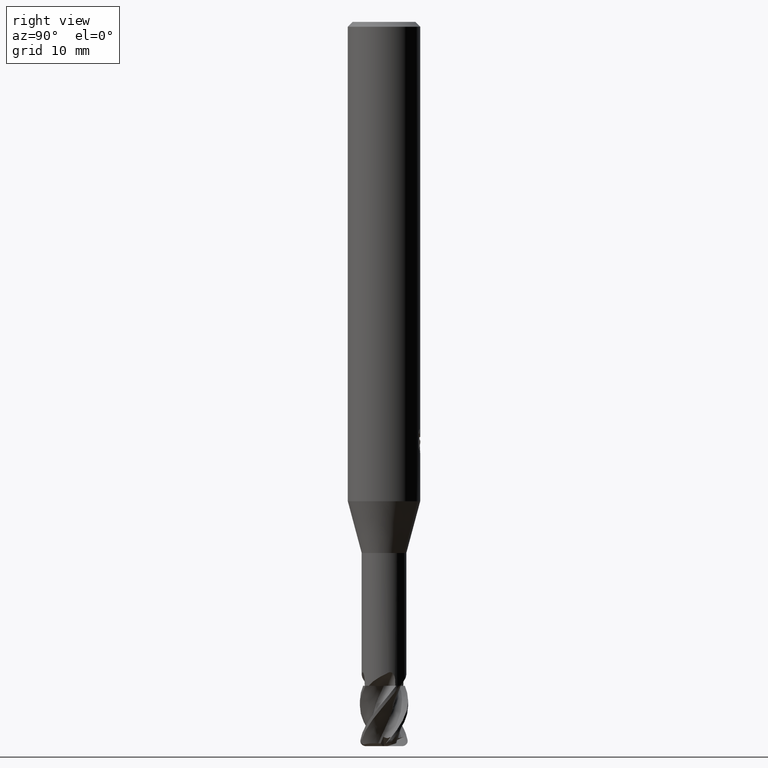
[diagram: clean part render]
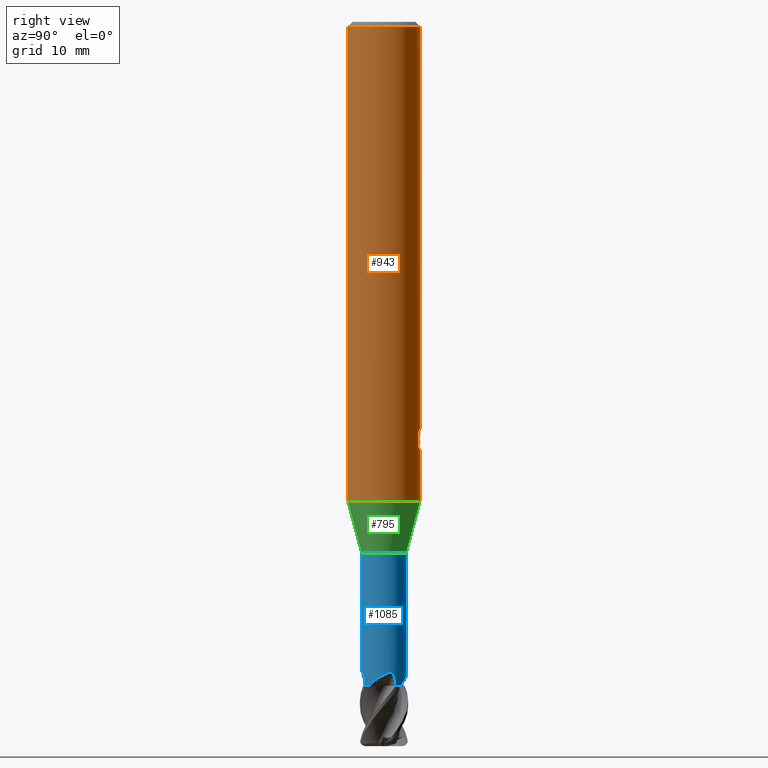
[diagram: same view with three faces highlighted in distinct colors, each labeled with its STEP entity id]
A machine part, right view with three faces highlighted in distinct colors.
Their STEP definitions:

[orange] entity #943 — the highlighted cylindrical surface (edge-blend (fillet) strip) has radius 3 mm, axis along (-0, -0, 1).
#527=EDGE_CURVE('',#1431,#1175,#1509,.T.);
#543=VERTEX_POINT('',#1526);
#597=EDGE_CURVE('',#1287,#835,#1586,.T.);
#693=VERTEX_POINT('',#1688);
#715=EDGE_CURVE('',#1125,#1431,#1713,.T.);
#835=VERTEX_POINT('',#1845);
#917=VERTEX_POINT('',#1936);
#943=ADVANCED_FACE('',(#1963,#1964),#1965,.T.);
#975=EDGE_CURVE('',#1027,#1385,#1999,.T.);
#977=EDGE_CURVE('',#917,#1125,#2001,.T.);
#1007=EDGE_CURVE('',#693,#1027,#2035,.T.);
#1013=EDGE_CURVE('',#1461,#1019,#2041,.T.);
#1019=VERTEX_POINT('',#2048);
#1027=VERTEX_POINT('',#2057);
#1069=VERTEX_POINT('',#2106);
#1089=EDGE_CURVE('',#1019,#1205,#2129,.T.);
#1097=EDGE_CURVE('',#1175,#1069,#2137,.T.);
#1125=VERTEX_POINT('',#2166);
#1139=EDGE_CURVE('',#543,#1205,#2181,.T.);
#1175=VERTEX_POINT('',#2218);
#1205=VERTEX_POINT('',#2249);
#1211=VERTEX_POINT('',#2255);
#1275=EDGE_CURVE('',#1211,#693,#2327,.T.);
#1287=VERTEX_POINT('',#2342);
#1289=EDGE_CURVE('',#835,#1211,#2344,.T.);
#1297=EDGE_CURVE('',#1385,#917,#2352,.T.);
#1385=VERTEX_POINT('',#2448);
#1423=EDGE_CURVE('',#543,#1461,#2488,.T.);
#1431=VERTEX_POINT('',#2497);
#1457=EDGE_CURVE('',#1069,#1287,#2526,.T.);
#1461=VERTEX_POINT('',#2530);
#1509=B_SPLINE_CURVE_WITH_KNOTS('',3,(#2588,#2589,#2590,#2591,#2592,#2593,#2594,#2595,#2596,#2597,#2598,#2599,#2600,#2601),.UNSPECIFIED.,.F.,.F.,(4,2,2,2,2,2,4),(2.091097645352,2.38959558480883,2.68809352426566,2.9865914637225,3.28432857408576,3.58206568444903,3.88185771191667),.UNSPECIFIED.);
#1526=CARTESIAN_POINT('',(0.0,3.0,-0.399999999999999));
#1586=B_SPLINE_CURVE_WITH_KNOTS('',3,(#3068,#3069,#3070,#3071,#3072,#3073,#3074,#3075,#3076,#3077),.UNSPECIFIED.,.F.,.F.,(4,2,2,2,4),(3.71798730591323,4.13127027719931,4.54460961578536,4.9579489543714,5.37052319276389),.UNSPECIFIED.);
#1688=CARTESIAN_POINT('',(0.582364149245685,2.94293255064967,-35.5472261365542));
#1713=LINE('',#3606,#3607);
#1845=CARTESIAN_POINT('',(0.193398861644812,2.99375965640438,-35.707955271205));
#1936=CARTESIAN_POINT('',(0.532945602569763,2.95228199613478,-33.7081001845789));
#1963=FACE_OUTER_BOUND('',#5257,.T.);
#1964=FACE_BOUND('',#5258,.T.);
#1965=CYLINDRICAL_SURFACE('',#5259,3.0);
#1999=LINE('',#5446,#5447);
#2001=B_SPLINE_CURVE_WITH_KNOTS('',3,(#5450,#5451,#5452,#5453,#5454,#5455,#5456,#5457,#5458,#5459,#5460,#5461,#5462,#5463,#5464,#5465,#5466,#5467,#5468,#5469,#5470,#5471,#5472,#5473,#5474,#5475,#5476),.UNSPECIFIED.,.F.,.F.,(4,2,3,2,2,2,2,2,2,2,2,2,4),(-0.361797878080097,-0.180898939040048,0.0,0.180898939040045,0.36179787808009,0.54316499674529,0.724532115410489,0.905110773244761,1.08568943107903,1.26650066090355,1.44731189072806,1.62812312055258,1.80893435037709),.UNSPECIFIED.);
#2035=B_SPLINE_CURVE_WITH_KNOTS('',3,(#5546,#5547,#5548,#5549,#5550,#5551),.UNSPECIFIED.,.F.,.F.,(4,2,4),(5.37052262242642,5.78309682294637,6.19625240627158),.UNSPECIFIED.);
#2041=CIRCLE('',#5610,3.0);
#2048=CARTESIAN_POINT('',(3.67381906146713E-016,-3.0,-39.708));
#2057=CARTESIAN_POINT('',(0.891458520360562,2.86448978117859,-35.2348516898096));
#2106=CARTESIAN_POINT('',(0.017320435906985,2.99995,-34.8414691290817));
#2129=LINE('',#5946,#5947);
#2137=ELLIPSE('',#5962,3.34478529612858,3.0);
#2166=CARTESIAN_POINT('',(0.0173204359069655,2.99995,-34.3937978605752));
#2181=CIRCLE('',#6085,3.0);
#2218=CARTESIAN_POINT('',(0.382078323112377,2.97556988743461,-34.6616374206519));
#2249=CARTESIAN_POINT('',(3.67381906146713E-016,-3.0,-0.399999999999999));
#2255=CARTESIAN_POINT('',(0.582364149245686,2.94293255064967,-34.5880141090597));
#2327=LINE('',#6925,#6926);
#2342=CARTESIAN_POINT('',(0.0173204359069983,2.99995,-35.7283099672144));
#2344=ELLIPSE('',#6982,9.14398372010932,3.0);
#2352=B_SPLINE_CURVE_WITH_KNOTS('',3,(#6991,#6992,#6993,#6994,#6995,#6996),.UNSPECIFIED.,.F.,.F.,(4,2,4),(0.413155597726238,0.826311195452475,1.23888540984235),.UNSPECIFIED.);
#2448=CARTESIAN_POINT('',(0.891458520360562,2.86448978117859,-34.0514599021333));
#2488=LINE('',#7733,#7734);
#2497=CARTESIAN_POINT('',(0.017320435906989,2.99995,-34.7101258377872));
#2526=LINE('',#7825,#7826);
#2530=CARTESIAN_POINT('',(0.0,3.0,-39.708));
#2588=CARTESIAN_POINT('',(-0.629727328037683,2.93316271153213,-33.6230913557644));
#2589=CARTESIAN_POINT('',(-0.670089755997728,2.92449721450026,-33.7202639601135));
#2590=CARTESIAN_POINT('',(-0.690061178540054,2.91955742705498,-33.8261316354559));
#2591=CARTESIAN_POINT('',(-0.690061178540054,2.91955742705498,-34.0251302617605));
#2592=CARTESIAN_POINT('',(-0.670089755997728,2.92449721450026,-34.1309979371029));
#2593=CARTESIAN_POINT('',(-0.589364900077664,2.94182820856402,-34.3253431458012));
#2594=CARTESIAN_POINT('',(-0.528629969212499,2.95390696563364,-34.4138560999866));
#2595=CARTESIAN_POINT('',(-0.388825924618277,2.97553438372319,-34.5534507471901));
#2596=CARTESIAN_POINT('',(-0.300374998568301,2.98650953771095,-34.6140152917628));
#2597=CARTESIAN_POINT('',(-0.106252469502454,2.99969577970094,-34.6944637231012));
#2598=CARTESIAN_POINT('',(-0.000555188223129111,3.0016411180253,-34.7143289843056));
#2599=CARTESIAN_POINT('',(0.198513504569518,2.99509240733468,-34.7143289843056));
#2600=CARTESIAN_POINT('',(0.304528894401634,2.98611319488251,-34.694217470731));
#2601=CARTESIAN_POINT('',(0.401676121348868,2.97298777218106,-34.6537873850085));
#3068=CARTESIAN_POINT('',(-1.02131077257619,2.8208020678204,-35.0603603909889));
#3069=CARTESIAN_POINT('',(-0.965748326062893,2.84091920915678,-35.193858656383));
#3070=CARTESIAN_POINT('',(-0.882474008253194,2.86898278727422,-35.3150393018291));
#3071=CARTESIAN_POINT('',(-0.691181971660376,2.92097462682348,-35.5064209134462));
#3072=CARTESIAN_POINT('',(-0.569939118101215,2.94845792845378,-35.5898242986056));
#3073=CARTESIAN_POINT('',(-0.302738780934602,2.98773894197887,-35.7011051738375));
#3074=CARTESIAN_POINT('',(-0.156684840798735,2.99907204453492,-35.7289145449035));
#3075=CARTESIAN_POINT('',(0.118614216879022,3.00080717863586,-35.7289145449035));
#3076=CARTESIAN_POINT('',(0.264548965222023,2.99134988491468,-35.7011974310104));
#3077=CARTESIAN_POINT('',(0.398117192990064,2.97346644518577,-35.6456337934181));
#3606=CARTESIAN_POINT('',(0.017320435906985,2.99995,-34.7185073647412));
#3607=VECTOR('',#8120,1.0);
#5257=EDGE_LOOP('',(#8384,#8385,#8386,#8387));
#5258=EDGE_LOOP('',(#8388,#8389,#8390,#8391,#8392,#8393,#8394,#8395,#8396,#8397,#8398));
#5259=AXIS2_PLACEMENT_3D('',#8399,#8400,#8401);
#5446=CARTESIAN_POINT('',(0.891458520360562,2.86448978117859,-34.6431557959714));
#5447=VECTOR('',#8424,1.0);
#5450=CARTESIAN_POINT('',(0.443451175650265,2.96704416125113,-33.5838764058061));
#5451=CARTESIAN_POINT('',(0.485825230520439,2.96071098134951,-33.6263072631593));
#5452=CARTESIAN_POINT('',(0.522628634598443,2.95423041401875,-33.6800565977036));
#5453=CARTESIAN_POINT('',(0.57151547907337,2.94516350896329,-33.7980093998545));
#5454=CARTESIAN_POINT('',(0.58359092842081,2.94268952291351,-33.8622247886018));
#5455=CARTESIAN_POINT('',(0.58359092842081,2.94268952291351,-33.9225244349484));
#5456=CARTESIAN_POINT('',(0.58359092842081,2.94268952291351,-33.9828240812951));
#5457=CARTESIAN_POINT('',(0.571515479073374,2.94516350896329,-34.0470394700423));
#5458=CARTESIAN_POINT('',(0.522628634598449,2.95423041401874,-34.1649922721932));
#5459=CARTESIAN_POINT('',(0.485825230520438,2.96071098134951,-34.2187416067375));
#5460=CARTESIAN_POINT('',(0.400967453640912,2.97339373188344,-34.3037131355921));
#5461=CARTESIAN_POINT('',(0.347160591378603,2.98043595390805,-34.3406186343397));
#5462=CARTESIAN_POINT('',(0.229067490754345,2.99183004798448,-34.3896491335629));
#5463=CARTESIAN_POINT('',(0.164768311964613,2.99608182394725,-34.4017661750437));
#5464=CARTESIAN_POINT('',(0.0441927259273236,3.00027835150232,-34.4017661750437));
#5465=CARTESIAN_POINT('',(-0.019984914707439,3.00051422459916,-34.3897432311485));
#5466=CARTESIAN_POINT('',(-0.138011899975601,2.99740516520178,-34.3408705536194));
#5467=CARTESIAN_POINT('',(-0.191865153226538,2.99416206152009,-34.3040238345305));
#5468=CARTESIAN_POINT('',(-0.276951356845972,2.9874941541864,-34.2190104084073));
#5469=CARTESIAN_POINT('',(-0.31385751762486,2.98363884435361,-34.1651404765947));
#5470=CARTESIAN_POINT('',(-0.362829872721118,2.97808021777493,-34.04703592618));
#5471=CARTESIAN_POINT('',(-0.374892551769671,2.97648376018208,-33.9827948448899));
#5472=CARTESIAN_POINT('',(-0.374892551769671,2.97648376018208,-33.8622540250069));
#5473=CARTESIAN_POINT('',(-0.362829872721118,2.97808021777493,-33.7980129437168));
#5474=CARTESIAN_POINT('',(-0.31385751762486,2.98363884435361,-33.6799083933022));
#5475=CARTESIAN_POINT('',(-0.276951356845972,2.9874941541864,-33.6260384614896));
#5476=CARTESIAN_POINT('',(-0.234380876478644,2.99083025341478,-33.5835043932883));
#5546=CARTESIAN_POINT('',(0.398117010340557,2.97346646964069,-35.6456335040356));
#5547=CARTESIAN_POINT('',(0.531685226880308,2.95558303976684,-35.5900698713996));
#5548=CARTESIAN_POINT('',(0.652975783373712,2.92974185605895,-35.5067230899086));
#5549=CARTESIAN_POINT('',(0.844490785097963,2.88038670497133,-35.3152944450911));
#5550=CARTESIAN_POINT('',(0.927866849687461,2.85351135080826,-35.1939939218539));
#5551=CARTESIAN_POINT('',(0.983470326877133,2.83421701994611,-35.0604192995311));
#5610=AXIS2_PLACEMENT_3D('',#8470,#8471,#8472);
#5946=CARTESIAN_POINT('',(3.67381906146713E-016,-3.0,-20.054));
#5947=VECTOR('',#8622,1.0);
#5962=AXIS2_PLACEMENT_3D('',#8623,#8624,#8625);
#6085=AXIS2_PLACEMENT_3D('',#8643,#8644,#8645);
#6925=CARTESIAN_POINT('',(0.582364149245686,2.94293255064967,-35.067620122807));
#6926=VECTOR('',#8782,1.0);
#6982=AXIS2_PLACEMENT_3D('',#8818,#8819,#8820);
#6991=CARTESIAN_POINT('',(0.983470332191283,2.8342170181021,-34.2258923016557));
#6992=CARTESIAN_POINT('',(0.927866853050187,2.8535113497582,-34.092317674708));
#6993=CARTESIAN_POINT('',(0.844490785540526,2.88038670496079,-33.9710171472775));
#6994=CARTESIAN_POINT('',(0.65297577716901,2.92974185755459,-33.7795884959489));
#6995=CARTESIAN_POINT('',(0.531685216531229,2.95558304183374,-33.6962417116512));
#6996=CARTESIAN_POINT('',(0.398116995441561,2.97346647163552,-33.6406780771524));
#7733=CARTESIAN_POINT('',(-3.67381906146713E-016,3.0,-20.054));
#7734=VECTOR('',#8939,1.0);
#7825=CARTESIAN_POINT('',(0.017320435906985,2.99995,-34.7185073647412));
#7826=VECTOR('',#8990,1.0);
#8120=DIRECTION('',(0.0,0.0,-1.0));
#8384=ORIENTED_EDGE('',*,*,#1423,.F.);
#8385=ORIENTED_EDGE('',*,*,#1139,.T.);
#8386=ORIENTED_EDGE('',*,*,#1089,.F.);
#8387=ORIENTED_EDGE('',*,*,#1013,.F.);
#8388=ORIENTED_EDGE('',*,*,#1097,.T.);
#8389=ORIENTED_EDGE('',*,*,#1457,.T.);
#8390=ORIENTED_EDGE('',*,*,#597,.T.);
#8391=ORIENTED_EDGE('',*,*,#1289,.T.);
#8392=ORIENTED_EDGE('',*,*,#1275,.T.);
#8393=ORIENTED_EDGE('',*,*,#1007,.T.);
#8394=ORIENTED_EDGE('',*,*,#975,.T.);
#8395=ORIENTED_EDGE('',*,*,#1297,.T.);
#8396=ORIENTED_EDGE('',*,*,#977,.T.);
#8397=ORIENTED_EDGE('',*,*,#715,.T.);
#8398=ORIENTED_EDGE('',*,*,#527,.T.);
#8399=CARTESIAN_POINT('',(0.0,0.0,-20.054));
#8400=DIRECTION('',(-0.0,-0.0,1.0));
#8401=DIRECTION('',(0.0,1.0,0.0));
#8424=DIRECTION('',(-0.0,-0.0,1.0));
#8470=CARTESIAN_POINT('',(0.0,0.0,-39.708));
#8471=DIRECTION('',(0.0,0.0,-1.0));
#8472=DIRECTION('',(0.0,1.0,0.0));
#8622=DIRECTION('',(-0.0,-0.0,1.0));
#8623=CARTESIAN_POINT('',(0.0,0.0,-34.8500083922181));
#8624=DIRECTION('',(-0.442195774284071,0.0,0.896918556617774));
#8625=DIRECTION('',(0.896918556617774,-0.0,0.442195774284071));
#8643=CARTESIAN_POINT('',(0.0,0.0,-0.399999999999999));
#8644=DIRECTION('',(0.0,0.0,-1.0));
#8645=DIRECTION('',(0.0,1.0,0.0));
#8782=DIRECTION('',(0.0,0.0,-1.0));
#8818=CARTESIAN_POINT('',(0.0,0.0,-36.2648053366801));
#8819=DIRECTION('',(0.944648353914092,0.0,-0.328084573619969));
#8820=DIRECTION('',(0.328084573619969,-0.0,0.944648353914092));
#8939=DIRECTION('',(0.0,0.0,-1.0));
#8990=DIRECTION('',(0.0,0.0,-1.0));

[blue] entity #1085 — the highlighted cylindrical surface (edge-blend (fillet) strip) has radius 1.8499 mm, axis along (-0, -0, 1).
#515=VERTEX_POINT('',#1494);
#549=VERTEX_POINT('',#1533);
#617=EDGE_CURVE('',#1083,#549,#1607,.T.);
#641=EDGE_CURVE('',#743,#1293,#1633,.T.);
#669=EDGE_CURVE('',#1033,#515,#1663,.T.);
#691=VERTEX_POINT('',#1686);
#743=VERTEX_POINT('',#1745);
#811=EDGE_CURVE('',#743,#1285,#1820,.T.);
#903=VERTEX_POINT('',#1920);
#911=EDGE_CURVE('',#903,#1429,#1930,.T.);
#973=EDGE_CURVE('',#1113,#1429,#1997,.T.);
#1009=EDGE_CURVE('',#1113,#1083,#2037,.T.);
#1033=VERTEX_POINT('',#2063);
#1041=EDGE_CURVE('',#1411,#515,#2072,.T.);
#1083=VERTEX_POINT('',#2122);
#1085=ADVANCED_FACE('',(#2124),#2125,.T.);
#1113=VERTEX_POINT('',#2153);
#1115=EDGE_CURVE('',#549,#1293,#2155,.T.);
#1141=EDGE_CURVE('',#1411,#691,#2183,.T.);
#1285=VERTEX_POINT('',#2340);
#1293=VERTEX_POINT('',#2348);
#1311=EDGE_CURVE('',#1033,#1285,#2368,.T.);
#1375=EDGE_CURVE('',#691,#903,#2438,.T.);
#1411=VERTEX_POINT('',#2476);
#1429=VERTEX_POINT('',#2495);
#1494=CARTESIAN_POINT('',(2.26546052425371E-016,-1.84995,-44.0));
#1533=CARTESIAN_POINT('',(1.60340414060989,0.922718897809648,-54.5381053615156));
#1607=B_SPLINE_CURVE_WITH_KNOTS('',3,(#3117,#3118,#3119,#3120,#3121,#3122,#3123,#3124,#3125,#3126,#3127,#3128,#3129,#3130),.UNSPECIFIED.,.F.,.F.,(4,2,2,2,2,2,4),(0.0,0.146255752914352,0.271726859971351,0.405659569847885,0.588954473361398,0.804127656715484,1.03090606845325),.UNSPECIFIED.);
#1633=CIRCLE('',#3361,1.84995);
#1663=CIRCLE('',#3462,1.84995);
#1686=CARTESIAN_POINT('',(0.364527360330853,-1.81367990727973,-53.9043443518821));
#1745=CARTESIAN_POINT('',(1.25538271516516,1.35879698298331,-55.0));
#1820=B_SPLINE_CURVE_WITH_KNOTS('',3,(#4261,#4262,#4263,#4264,#4265,#4266,#4267,#4268),.UNSPECIFIED.,.F.,.F.,(4,2,2,4),(0.0,0.678456856667117,1.43390027530377,2.10300590931044),.UNSPECIFIED.);
#1920=CARTESIAN_POINT('',(0.92271889780964,-1.6034041406099,-54.5381053615156));
#1930=B_SPLINE_CURVE_WITH_KNOTS('',3,(#5146,#5147,#5148,#5149),.UNSPECIFIED.,.F.,.F.,(4,4),(0.0,0.461968115727106),.UNSPECIFIED.);
#1997=CIRCLE('',#5443,1.84995);
#2037=B_SPLINE_CURVE_WITH_KNOTS('',3,(#5554,#5555,#5556,#5557,#5558,#5559,#5560,#5561),.UNSPECIFIED.,.F.,.F.,(4,2,2,4),(0.0,0.678456856667114,1.43390027530379,2.10300590931053),.UNSPECIFIED.);
#2063=CARTESIAN_POINT('',(0.0,1.84995,-44.0));
#2072=LINE('',#5651,#5652);
#2122=CARTESIAN_POINT('',(1.81367990727973,0.364527360330862,-53.9043443518822));
#2124=FACE_OUTER_BOUND('',#5940,.T.);
#2125=CYLINDRICAL_SURFACE('',#5941,1.84995);
#2153=CARTESIAN_POINT('',(1.3587969829833,-1.25538271516517,-55.0));
#2155=B_SPLINE_CURVE_WITH_KNOTS('',3,(#6011,#6012,#6013,#6014),.UNSPECIFIED.,.F.,.F.,(4,4),(0.0,0.461968115727206),.UNSPECIFIED.);
#2183=B_SPLINE_CURVE_WITH_KNOTS('',3,(#6088,#6089,#6090,#6091,#6092,#6093,#6094,#6095),.UNSPECIFIED.,.F.,.F.,(4,2,2,4),(0.0,0.678456856667208,1.43390027530397,2.1030059093107),.UNSPECIFIED.);
#2340=CARTESIAN_POINT('',(3.58301973960268E-014,1.84995,-54.094504547049));
#2348=CARTESIAN_POINT('',(1.59899234686756,0.930343203962369,-55.0));
#2368=LINE('',#7027,#7028);
#2438=B_SPLINE_CURVE_WITH_KNOTS('',3,(#7381,#7382,#7383,#7384,#7385,#7386,#7387,#7388,#7389,#7390,#7391,#7392,#7393,#7394),.UNSPECIFIED.,.F.,.F.,(4,2,2,2,2,2,4),(0.0,0.146255752914502,0.271726859971618,0.405659569848159,0.588954473361731,0.804127656715791,1.03090606845343),.UNSPECIFIED.);
#2476=CARTESIAN_POINT('',(-3.56081527911017E-014,-1.84995,-54.0945045470489));
#2495=CARTESIAN_POINT('',(0.930343203962361,-1.59899234686757,-55.0));
#3117=CARTESIAN_POINT('',(1.81367990727847,0.364527360337118,-53.9043443521431));
#3118=CARTESIAN_POINT('',(1.80480957869654,0.408661048148985,-53.8856284673292));
#3119=CARTESIAN_POINT('',(1.79384619583339,0.45475366998904,-53.874396570956));
#3120=CARTESIAN_POINT('',(1.76932117102243,0.541813532404139,-53.8735900256868));
#3121=CARTESIAN_POINT('',(1.7569490236056,0.580477696569644,-53.8812018948643));
#3122=CARTESIAN_POINT('',(1.73015696198162,0.656194741545085,-53.9128583535765));
#3123=CARTESIAN_POINT('',(1.71633572682154,0.691102876594381,-53.9371878563706));
#3124=CARTESIAN_POINT('',(1.68545313719381,0.763972446967266,-54.0072087323319));
#3125=CARTESIAN_POINT('',(1.66921667294351,0.798090775711307,-54.0571748934213));
#3126=CARTESIAN_POINT('',(1.63983252752745,0.857047034718233,-54.1729032138178));
#3127=CARTESIAN_POINT('',(1.62721809566182,0.880227689054278,-54.2417333586911));
#3128=CARTESIAN_POINT('',(1.60929781431095,0.912598492800015,-54.3853056778037));
#3129=CARTESIAN_POINT('',(1.60418177418589,0.921367607726879,-54.4618674771134));
#3130=CARTESIAN_POINT('',(1.60340414065977,0.922718897722975,-54.5381053615163));
#3361=AXIS2_PLACEMENT_3D('',#8033,#8034,#8035);
#3462=AXIS2_PLACEMENT_3D('',#8069,#8070,#8071);
#4261=CARTESIAN_POINT('',(1.25538271516517,1.3587969829833,-55.0));
#4262=CARTESIAN_POINT('',(1.13644330859545,1.46868424136667,-54.842129596593));
#4263=CARTESIAN_POINT('',(0.996322908847657,1.56982203931715,-54.7061628424029));
#4264=CARTESIAN_POINT('',(0.644535166296736,1.74639438949122,-54.4413931862104));
#4265=CARTESIAN_POINT('',(0.437972862191055,1.81093451286821,-54.3233229203005));
#4266=CARTESIAN_POINT('',(0.0235122859117477,1.86015951283191,-54.1048152689609));
#4267=CARTESIAN_POINT('',(-0.17318963749898,1.85213643687774,-54.0083031677223));
#4268=CARTESIAN_POINT('',(-0.364527360330854,1.81367990727973,-53.9043443518821));
#5146=CARTESIAN_POINT('',(0.922718897809632,-1.60340414060991,-54.5381053615156));
#5147=CARTESIAN_POINT('',(0.925447735325739,-1.60183376301053,-54.6920625439429));
#5148=CARTESIAN_POINT('',(0.92799090784143,-1.60036098550683,-54.8460344410845));
#5149=CARTESIAN_POINT('',(0.930343203962362,-1.59899234686756,-55.0));
#5443=AXIS2_PLACEMENT_3D('',#8421,#8422,#8423);
#5554=CARTESIAN_POINT('',(1.3587969829833,-1.25538271516517,-55.0));
#5555=CARTESIAN_POINT('',(1.46868424136667,-1.13644330859545,-54.842129596593));
#5556=CARTESIAN_POINT('',(1.56982203931715,-0.996322908847657,-54.7061628424029));
#5557=CARTESIAN_POINT('',(1.74639438949122,-0.644535166296731,-54.4413931862105));
#5558=CARTESIAN_POINT('',(1.81093451286821,-0.437972862191048,-54.3233229203005));
#5559=CARTESIAN_POINT('',(1.86015951283191,-0.0235122859117375,-54.1048152689609));
#5560=CARTESIAN_POINT('',(1.85213643687774,0.173189637498984,-54.0083031677223));
#5561=CARTESIAN_POINT('',(1.81367990727973,0.364527360330853,-53.9043443518821));
#5651=CARTESIAN_POINT('',(2.26546052425371E-016,-1.84995,-49.5));
#5652=VECTOR('',#8529,1.0);
#5940=EDGE_LOOP('',(#8607,#8608,#8609,#8610,#8611,#8612,#8613,#8614,#8615,#8616,#8617,#8618));
#5941=AXIS2_PLACEMENT_3D('',#8619,#8620,#8621);
#6011=CARTESIAN_POINT('',(1.60340414060991,0.92271889780964,-54.5381053615156));
#6012=CARTESIAN_POINT('',(1.60183376301053,0.925447735325747,-54.6920625439429));
#6013=CARTESIAN_POINT('',(1.60036098550683,0.927990907841438,-54.8460344410845));
#6014=CARTESIAN_POINT('',(1.59899234686756,0.930343203962369,-55.0));
#6088=CARTESIAN_POINT('',(-1.25538271516518,-1.3587969829833,-55.0));
#6089=CARTESIAN_POINT('',(-1.13644330859544,-1.46868424136668,-54.842129596593));
#6090=CARTESIAN_POINT('',(-0.996322908847657,-1.56982203931715,-54.7061628424029));
#6091=CARTESIAN_POINT('',(-0.644535166296753,-1.74639438949121,-54.4413931862105));
#6092=CARTESIAN_POINT('',(-0.437972862191077,-1.81093451286821,-54.3233229203005));
#6093=CARTESIAN_POINT('',(-0.0235122859117566,-1.86015951283191,-54.1048152689609));
#6094=CARTESIAN_POINT('',(0.173189637498969,-1.85213643687774,-54.0083031677223));
#6095=CARTESIAN_POINT('',(0.364527360330844,-1.81367990727973,-53.9043443518821));
#7027=CARTESIAN_POINT('',(-2.26546052425371E-016,1.84995,-49.5));
#7028=VECTOR('',#8840,1.0);
#7381=CARTESIAN_POINT('',(0.36452736033711,-1.81367990727847,-53.9043443521431));
#7382=CARTESIAN_POINT('',(0.408661048149022,-1.80480957869654,-53.8856284673292));
#7383=CARTESIAN_POINT('',(0.454753669989047,-1.79384619583338,-53.874396570956));
#7384=CARTESIAN_POINT('',(0.541813532404107,-1.76932117102243,-53.8735900256868));
#7385=CARTESIAN_POINT('',(0.5804776965696,-1.75694902360562,-53.8812018948643));
#7386=CARTESIAN_POINT('',(0.656194741545081,-1.73015696198162,-53.9128583535765));
#7387=CARTESIAN_POINT('',(0.69110287659438,-1.71633572682154,-53.9371878563706));
#7388=CARTESIAN_POINT('',(0.763972446967252,-1.68545313719382,-54.0072087323319));
#7389=CARTESIAN_POINT('',(0.798090775711292,-1.66921667294351,-54.0571748934213));
#7390=CARTESIAN_POINT('',(0.857047034718218,-1.63983252752746,-54.1729032138178));
#7391=CARTESIAN_POINT('',(0.880227689054264,-1.62721809566183,-54.2417333586911));
#7392=CARTESIAN_POINT('',(0.912598492800006,-1.60929781431095,-54.3853056778036));
#7393=CARTESIAN_POINT('',(0.921367607726871,-1.6041817741859,-54.4618674771134));
#7394=CARTESIAN_POINT('',(0.922718897722968,-1.60340414065978,-54.5381053615163));
#8033=CARTESIAN_POINT('',(0.0,0.0,-55.0));
#8034=DIRECTION('',(0.0,0.0,-1.0));
#8035=DIRECTION('',(0.0,1.0,0.0));
#8069=CARTESIAN_POINT('',(0.0,0.0,-44.0));
#8070=DIRECTION('',(0.0,0.0,-1.0));
#8071=DIRECTION('',(0.0,1.0,0.0));
#8421=CARTESIAN_POINT('',(0.0,0.0,-55.0));
#8422=DIRECTION('',(0.0,0.0,-1.0));
#8423=DIRECTION('',(0.0,1.0,0.0));
#8529=DIRECTION('',(-0.0,-0.0,1.0));
#8607=ORIENTED_EDGE('',*,*,#1311,.F.);
#8608=ORIENTED_EDGE('',*,*,#669,.T.);
#8609=ORIENTED_EDGE('',*,*,#1041,.F.);
#8610=ORIENTED_EDGE('',*,*,#1141,.T.);
#8611=ORIENTED_EDGE('',*,*,#1375,.T.);
#8612=ORIENTED_EDGE('',*,*,#911,.T.);
#8613=ORIENTED_EDGE('',*,*,#973,.F.);
#8614=ORIENTED_EDGE('',*,*,#1009,.T.);
#8615=ORIENTED_EDGE('',*,*,#617,.T.);
#8616=ORIENTED_EDGE('',*,*,#1115,.T.);
#8617=ORIENTED_EDGE('',*,*,#641,.F.);
#8618=ORIENTED_EDGE('',*,*,#811,.T.);
#8619=CARTESIAN_POINT('',(0.0,0.0,-49.5));
#8620=DIRECTION('',(-0.0,-0.0,1.0));
#8621=DIRECTION('',(0.0,1.0,0.0));
#8840=DIRECTION('',(0.0,0.0,-1.0));

[green] entity #795 — the highlighted conical surface has half-angle 15 deg.
#515=VERTEX_POINT('',#1494);
#669=EDGE_CURVE('',#1033,#515,#1663,.T.);
#795=ADVANCED_FACE('',(#1803),#1804,.T.);
#829=EDGE_CURVE('',#1443,#1033,#1839,.T.);
#941=EDGE_CURVE('',#1443,#1003,#1961,.T.);
#1003=VERTEX_POINT('',#2031);
#1033=VERTEX_POINT('',#2063);
#1037=EDGE_CURVE('',#515,#1003,#2068,.T.);
#1443=VERTEX_POINT('',#2511);
#1494=CARTESIAN_POINT('',(2.26546052425371E-016,-1.84995,-44.0));
#1663=CIRCLE('',#3462,1.84995);
#1803=FACE_OUTER_BOUND('',#4215,.T.);
#1804=CONICAL_SURFACE('',#4216,2.42495,0.261791141549813);
#1839=LINE('',#4346,#4347);
#1961=CIRCLE('',#5255,2.99995);
#2031=CARTESIAN_POINT('',(3.67375783114944E-016,-2.99995,-39.708));
#2063=CARTESIAN_POINT('',(0.0,1.84995,-44.0));
#2068=LINE('',#5645,#5646);
#2511=CARTESIAN_POINT('',(0.0,2.99995,-39.708));
#3462=AXIS2_PLACEMENT_3D('',#8069,#8070,#8071);
#4215=EDGE_LOOP('',(#8246,#8247,#8248,#8249));
#4216=AXIS2_PLACEMENT_3D('',#8250,#8251,#8252);
#4346=CARTESIAN_POINT('',(-2.96960917770157E-016,2.42495,-41.854));
#4347=VECTOR('',#8266,1.0);
#5255=AXIS2_PLACEMENT_3D('',#8380,#8381,#8382);
#5645=CARTESIAN_POINT('',(2.96960917770157E-016,-2.42495,-41.854));
#5646=VECTOR('',#8528,1.0);
#8069=CARTESIAN_POINT('',(0.0,0.0,-44.0));
#8070=DIRECTION('',(0.0,0.0,-1.0));
#8071=DIRECTION('',(0.0,1.0,0.0));
#8246=ORIENTED_EDGE('',*,*,#829,.F.);
#8247=ORIENTED_EDGE('',*,*,#941,.T.);
#8248=ORIENTED_EDGE('',*,*,#1037,.F.);
#8249=ORIENTED_EDGE('',*,*,#669,.F.);
#8250=CARTESIAN_POINT('',(0.0,0.0,-41.854));
#8251=DIRECTION('',(-0.0,-0.0,1.0));
#8252=DIRECTION('',(0.0,1.0,0.0));
#8266=DIRECTION('',(3.16941692797633E-017,-0.258811079828517,-0.965927960542605));
#8380=CARTESIAN_POINT('',(0.0,0.0,-39.708));
#8381=DIRECTION('',(0.0,0.0,-1.0));
#8382=DIRECTION('',(0.0,1.0,0.0));
#8528=DIRECTION('',(3.16941692797633E-017,-0.258811079828517,0.965927960542605));